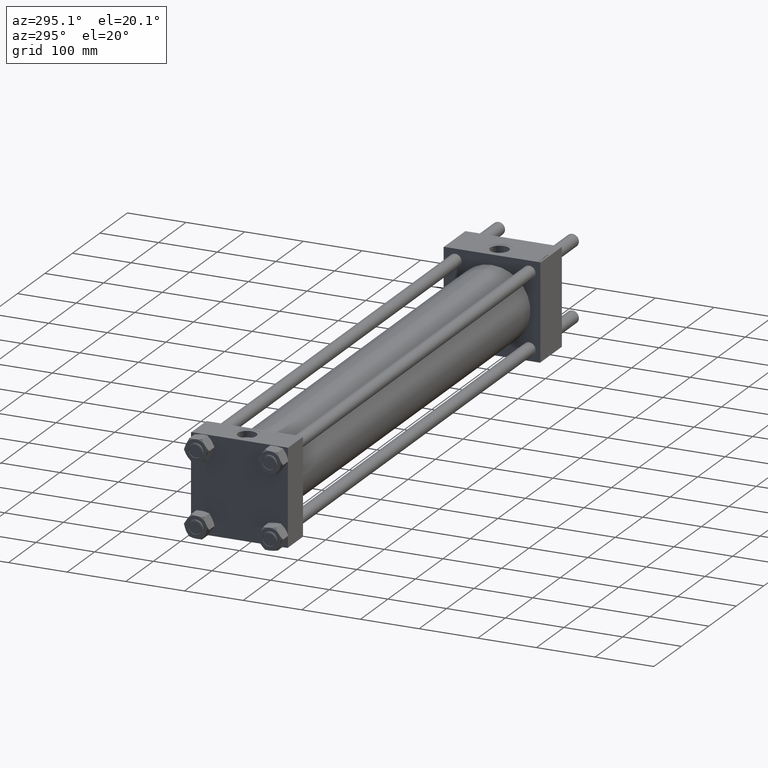
[diagram: clean part render]
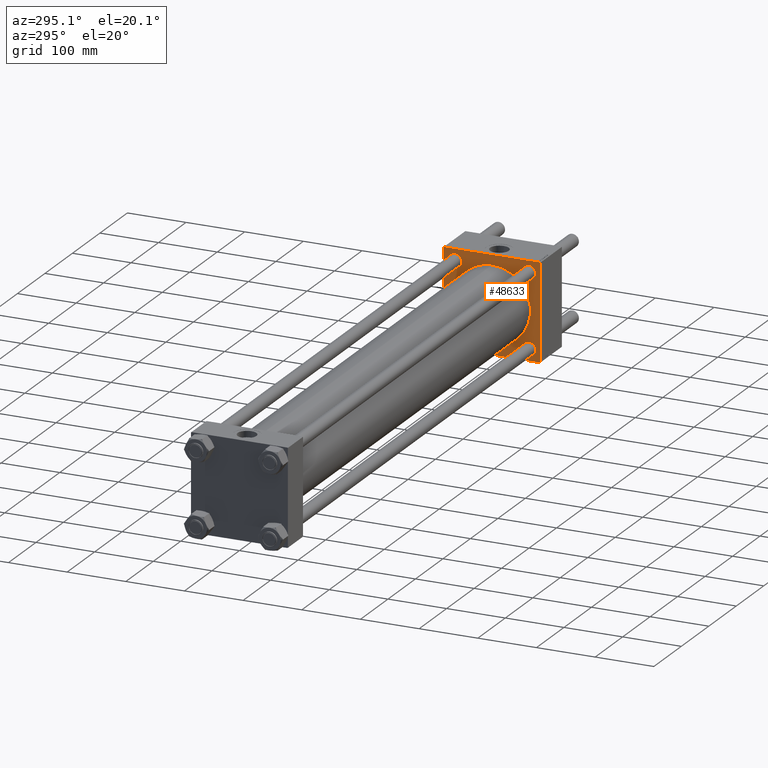
[diagram: same view with one face highlighted and labeled with its STEP entity id]
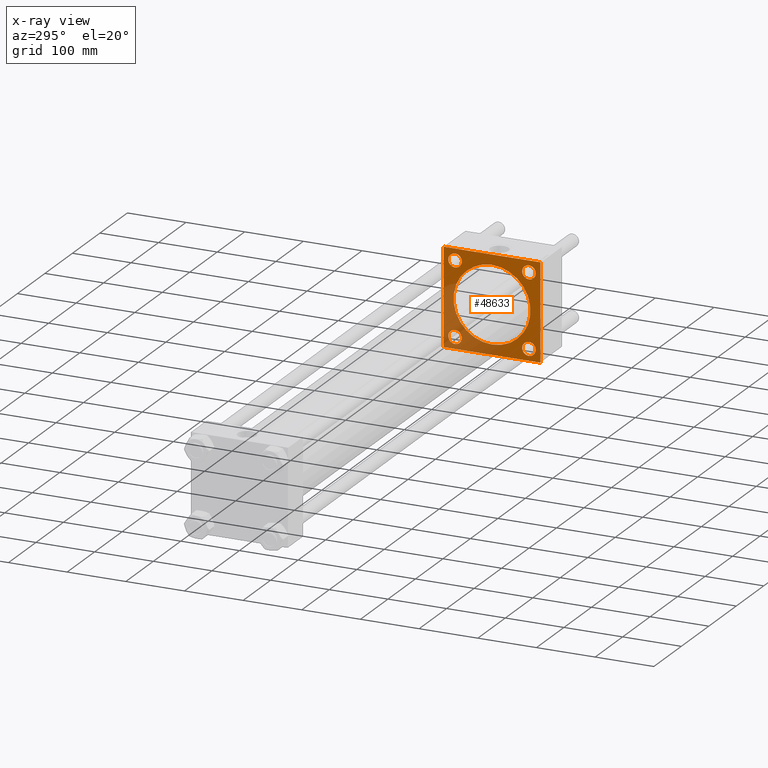
[diagram: x-ray of the same camera — body ghosted, the highlighted face saturated]
A machine part, auxiliary view. The second image highlights one B-rep face of the part: STEP entity #48633.
The next image is the same camera in x-ray: the body ghosted, the highlighted face saturated — about 30% of this face is hidden behind the body in this view.
In plain terms, the highlighted planar face has unit normal (-1, 0, 0).
Its self-contained STEP definition (entity closure, byte-faithful):
#79 = DIRECTION ( 'NONE',  ( 0.000000000000000000, 0.000000000000000000, -1.000000000000000000 ) ) ;
#223 = DIRECTION ( 'NONE',  ( 0.000000000000000000, 0.000000000000000000, 1.000000000000000000 ) ) ;
#1224 = VERTEX_POINT ( 'NONE', #49456 ) ;
#1957 = ORIENTED_EDGE ( 'NONE', *, *, #35893, .T. ) ;
#2743 = VERTEX_POINT ( 'NONE', #3774 ) ;
#3432 = DIRECTION ( 'NONE',  ( 0.000000000000000000, 0.000000000000000000, 1.000000000000000000 ) ) ;
#3610 = FACE_BOUND ( 'NONE', #14851, .T. ) ;
#3683 = DIRECTION ( 'NONE',  ( 1.000000000000000000, 0.000000000000000000, -0.000000000000000000 ) ) ;
#3702 = CARTESIAN_POINT ( 'NONE',  ( 919.0000000000000000, -2.602085213965210642E-15, 0.000000000000000000 ) ) ;
#3774 = CARTESIAN_POINT ( 'NONE',  ( 919.0000000000000000, 62.95000000000000284, 51.45000000000027285 ) ) ;
#3797 = ORIENTED_EDGE ( 'NONE', *, *, #41716, .F. ) ;
#4388 = DIRECTION ( 'NONE',  ( -0.000000000000000000, 0.7071067811865573427, 0.7071067811865376918 ) ) ;
#4572 = CARTESIAN_POINT ( 'NONE',  ( 919.0000000000000000, 62.95000000000000284, 62.95000000000000284 ) ) ;
#5892 = EDGE_CURVE ( 'NONE', #27358, #20453, #47276, .T. ) ;
#6140 = EDGE_LOOP ( 'NONE', ( #43235, #16230, #3797, #55112, #32992, #44454, #45567, #14148 ) ) ;
#7070 = AXIS2_PLACEMENT_3D ( 'NONE', #47682, #3683, #33236 ) ;
#7568 = VERTEX_POINT ( 'NONE', #15457 ) ;
#7668 = CARTESIAN_POINT ( 'NONE',  ( 919.0000000000000000, -62.94999999999998153, -74.44999999999974705 ) ) ;
#7822 = CIRCLE ( 'NONE', #30027, 11.49999999999973355 ) ;
#7831 = VERTEX_POINT ( 'NONE', #17268 ) ;
#7835 = LINE ( 'NONE', #42305, #56791 ) ;
#7858 = ORIENTED_EDGE ( 'NONE', *, *, #49050, .T. ) ;
#7923 = ORIENTED_EDGE ( 'NONE', *, *, #33214, .T. ) ;
#7957 = CARTESIAN_POINT ( 'NONE',  ( 919.0000000000000000, -82.49999999999997158, 81.99999999999991473 ) ) ;
#8914 = EDGE_CURVE ( 'NONE', #41818, #1224, #31174, .T. ) ;
#9157 = CARTESIAN_POINT ( 'NONE',  ( 919.0000000000000000, 62.95000000000000284, -62.95000000000000284 ) ) ;
#9288 = LINE ( 'NONE', #35099, #32278 ) ;
#9549 = EDGE_CURVE ( 'NONE', #43296, #7831, #40416, .T. ) ;
#10009 = CARTESIAN_POINT ( 'NONE',  ( 919.0000000000000000, 82.50000000000001421, -82.50000000000002842 ) ) ;
#10528 = EDGE_CURVE ( 'NONE', #47520, #31435, #30566, .T. ) ;
#11296 = CARTESIAN_POINT ( 'NONE',  ( 919.0000000000000000, -62.94999999999998153, -62.95000000000001705 ) ) ;
#11417 = DIRECTION ( 'NONE',  ( 0.000000000000000000, 0.000000000000000000, -1.000000000000000000 ) ) ;
#12033 = EDGE_CURVE ( 'NONE', #47520, #27358, #41742, .T. ) ;
#12051 = AXIS2_PLACEMENT_3D ( 'NONE', #3702, #21354, #25993 ) ;
#12154 = DIRECTION ( 'NONE',  ( 1.000000000000000000, 0.000000000000000000, -0.000000000000000000 ) ) ;
#12874 = CIRCLE ( 'NONE', #34120, 11.49999999999973355 ) ;
#13154 = FACE_BOUND ( 'NONE', #19868, .T. ) ;
#13473 = VECTOR ( 'NONE', #79, 1000.000000000000000 ) ;
#14148 = ORIENTED_EDGE ( 'NONE', *, *, #16415, .T. ) ;
#14407 = VECTOR ( 'NONE', #39537, 1000.000000000000000 ) ;
#14625 = DIRECTION ( 'NONE',  ( -0.000000000000000000, -0.7071067811865474617, -0.7071067811865474617 ) ) ;
#14851 = EDGE_LOOP ( 'NONE', ( #1957, #49174 ) ) ;
#14910 = LINE ( 'NONE', #53712, #33064 ) ;
#15122 = EDGE_CURVE ( 'NONE', #7568, #47366, #19557, .T. ) ;
#15231 = VERTEX_POINT ( 'NONE', #7957 ) ;
#15457 = CARTESIAN_POINT ( 'NONE',  ( 919.0000000000000000, 81.99999999999995737, -82.50000000000002842 ) ) ;
#15974 = CARTESIAN_POINT ( 'NONE',  ( 919.0000000000000000, 81.99999999999995737, 82.50000000000000000 ) ) ;
#16230 = ORIENTED_EDGE ( 'NONE', *, *, #29250, .T. ) ;
#16415 = EDGE_CURVE ( 'NONE', #20453, #7568, #14910, .T. ) ;
#16638 = CARTESIAN_POINT ( 'NONE',  ( 919.0000000000000000, 0.000000000000000000, 0.000000000000000000 ) ) ;
#17245 = DIRECTION ( 'NONE',  ( 0.000000000000000000, 0.000000000000000000, 1.000000000000000000 ) ) ;
#17268 = CARTESIAN_POINT ( 'NONE',  ( 919.0000000000000000, -62.94999999999998153, 74.44999999999997442 ) ) ;
#17532 = DIRECTION ( 'NONE',  ( 1.000000000000000000, 0.000000000000000000, -0.000000000000000000 ) ) ;
#17766 = ORIENTED_EDGE ( 'NONE', *, *, #8914, .T. ) ;
#18190 = CIRCLE ( 'NONE', #7070, 11.49999999999973355 ) ;
#19328 = CARTESIAN_POINT ( 'NONE',  ( 919.0000000000000000, -62.94999999999998153, 62.95000000000001705 ) ) ;
#19557 = LINE ( 'NONE', #10009, #45024 ) ;
#19607 = DIRECTION ( 'NONE',  ( 0.000000000000000000, 0.000000000000000000, 1.000000000000000000 ) ) ;
#19868 = EDGE_LOOP ( 'NONE', ( #50346, #28737 ) ) ;
#20007 = DIRECTION ( 'NONE',  ( 0.000000000000000000, -1.682156097916903834E-16, -1.000000000000000000 ) ) ;
#20358 = VECTOR ( 'NONE', #35349, 1000.000000000000000 ) ;
#20453 = VERTEX_POINT ( 'NONE', #56142 ) ;
#21138 = EDGE_CURVE ( 'NONE', #15231, #31435, #9288, .T. ) ;
#21354 = DIRECTION ( 'NONE',  ( 1.000000000000000000, 0.000000000000000000, 0.000000000000000000 ) ) ;
#22164 = VERTEX_POINT ( 'NONE', #50107 ) ;
#22750 = DIRECTION ( 'NONE',  ( 1.000000000000000000, 0.000000000000000000, -0.000000000000000000 ) ) ;
#22765 = VECTOR ( 'NONE', #28711, 1000.000000000000114 ) ;
#22855 = CIRCLE ( 'NONE', #49630, 65.50000000000001421 ) ;
#23325 = CARTESIAN_POINT ( 'NONE',  ( 919.0000000000000000, 82.50000000000001421, 81.99999999999994316 ) ) ;
#24657 = ORIENTED_EDGE ( 'NONE', *, *, #56060, .T. ) ;
#25901 = FACE_BOUND ( 'NONE', #54332, .T. ) ;
#25993 = DIRECTION ( 'NONE',  ( 0.000000000000000000, 0.000000000000000000, -1.000000000000000000 ) ) ;
#26540 = CARTESIAN_POINT ( 'NONE',  ( 919.0000000000000000, -62.94999999999998153, -51.45000000000028706 ) ) ;
#27302 = EDGE_LOOP ( 'NONE', ( #31370, #56838 ) ) ;
#27358 = VERTEX_POINT ( 'NONE', #23325 ) ;
#28292 = EDGE_LOOP ( 'NONE', ( #17766, #7923 ) ) ;
#28338 = EDGE_CURVE ( 'NONE', #56220, #22164, #42552, .T. ) ;
#28369 = AXIS2_PLACEMENT_3D ( 'NONE', #16638, #51959, #48468 ) ;
#28711 = DIRECTION ( 'NONE',  ( 0.000000000000000000, 0.7071067811865474617, -0.7071067811865474617 ) ) ;
#28737 = ORIENTED_EDGE ( 'NONE', *, *, #38136, .T. ) ;
#29250 = EDGE_CURVE ( 'NONE', #47366, #53707, #56754, .T. ) ;
#29271 = CARTESIAN_POINT ( 'NONE',  ( 919.0000000000000000, -81.99999999999990052, 82.49999999999997158 ) ) ;
#30027 = AXIS2_PLACEMENT_3D ( 'NONE', #11296, #12154, #34455 ) ;
#30281 = CARTESIAN_POINT ( 'NONE',  ( 919.0000000000000000, -62.94999999999998153, -62.95000000000001705 ) ) ;
#30566 = LINE ( 'NONE', #52845, #14407 ) ;
#30720 = CARTESIAN_POINT ( 'NONE',  ( 919.0000000000000000, -82.25000000000805755, -82.24999999999208455 ) ) ;
#30822 = PLANE ( 'NONE',  #28369 ) ;
#31174 = CIRCLE ( 'NONE', #33035, 11.49999999999973355 ) ;
#31370 = ORIENTED_EDGE ( 'NONE', *, *, #50412, .T. ) ;
#31435 = VERTEX_POINT ( 'NONE', #29271 ) ;
#32278 = VECTOR ( 'NONE', #4388, 1000.000000000000114 ) ;
#32424 = CARTESIAN_POINT ( 'NONE',  ( 919.0000000000000000, 62.95000000000000284, -51.45000000000027285 ) ) ;
#32798 = EDGE_CURVE ( 'NONE', #54545, #34756, #36338, .T. ) ;
#32992 = ORIENTED_EDGE ( 'NONE', *, *, #10528, .F. ) ;
#33035 = AXIS2_PLACEMENT_3D ( 'NONE', #9157, #22750, #53445 ) ;
#33064 = VECTOR ( 'NONE', #14625, 1000.000000000000114 ) ;
#33214 = EDGE_CURVE ( 'NONE', #1224, #41818, #49268, .T. ) ;
#33236 = DIRECTION ( 'NONE',  ( 0.000000000000000000, 0.000000000000000000, 1.000000000000000000 ) ) ;
#34120 = AXIS2_PLACEMENT_3D ( 'NONE', #4572, #39896, #223 ) ;
#34182 = DIRECTION ( 'NONE',  ( 1.000000000000000000, 0.000000000000000000, -0.000000000000000000 ) ) ;
#34217 = CARTESIAN_POINT ( 'NONE',  ( 919.0000000000000000, 62.95000000000000284, 74.44999999999973284 ) ) ;
#34455 = DIRECTION ( 'NONE',  ( 0.000000000000000000, 0.000000000000000000, 1.000000000000000000 ) ) ;
#34756 = VERTEX_POINT ( 'NONE', #7668 ) ;
#35099 = CARTESIAN_POINT ( 'NONE',  ( 919.0000000000000000, -82.24999999999880629, 82.25000000000108002 ) ) ;
#35349 = DIRECTION ( 'NONE',  ( 0.000000000000000000, -0.7071067811864788499, 0.7071067811866161845 ) ) ;
#35893 = EDGE_CURVE ( 'NONE', #7831, #43296, #37326, .T. ) ;
#36338 = CIRCLE ( 'NONE', #41874, 11.49999999999973355 ) ;
#37326 = CIRCLE ( 'NONE', #56750, 11.49999999999995381 ) ;
#38136 = EDGE_CURVE ( 'NONE', #34756, #54545, #7822, .T. ) ;
#38519 = DIRECTION ( 'NONE',  ( 0.000000000000000000, 0.000000000000000000, 1.000000000000000000 ) ) ;
#39280 = CARTESIAN_POINT ( 'NONE',  ( 919.0000000000000000, -82.50000000000000000, -82.00000000000008527 ) ) ;
#39537 = DIRECTION ( 'NONE',  ( 0.000000000000000000, -1.000000000000000000, -1.682156097916904081E-16 ) ) ;
#39896 = DIRECTION ( 'NONE',  ( 1.000000000000000000, 0.000000000000000000, -0.000000000000000000 ) ) ;
#40416 = CIRCLE ( 'NONE', #46853, 11.49999999999995381 ) ;
#41716 = EDGE_CURVE ( 'NONE', #15231, #53707, #7835, .T. ) ;
#41742 = LINE ( 'NONE', #46350, #22765 ) ;
#41818 = VERTEX_POINT ( 'NONE', #32424 ) ;
#41874 = AXIS2_PLACEMENT_3D ( 'NONE', #30281, #17532, #17245 ) ;
#42305 = CARTESIAN_POINT ( 'NONE',  ( 919.0000000000000000, -82.49999999999997158, 82.49999999999997158 ) ) ;
#42552 = CIRCLE ( 'NONE', #12051, 65.50000000000001421 ) ;
#43235 = ORIENTED_EDGE ( 'NONE', *, *, #15122, .T. ) ;
#43259 = CARTESIAN_POINT ( 'NONE',  ( 919.0000000000000000, -2.602085213965210642E-15, 0.000000000000000000 ) ) ;
#43292 = CARTESIAN_POINT ( 'NONE',  ( 919.0000000000000000, 5.419351320449954973E-15, -65.50000000000001421 ) ) ;
#43296 = VERTEX_POINT ( 'NONE', #47371 ) ;
#43548 = FACE_BOUND ( 'NONE', #27302, .T. ) ;
#44454 = ORIENTED_EDGE ( 'NONE', *, *, #12033, .T. ) ;
#45024 = VECTOR ( 'NONE', #55154, 1000.000000000000000 ) ;
#45567 = ORIENTED_EDGE ( 'NONE', *, *, #5892, .T. ) ;
#46350 = CARTESIAN_POINT ( 'NONE',  ( 919.0000000000000000, 82.24999999999997158, 82.24999999999997158 ) ) ;
#46366 = VERTEX_POINT ( 'NONE', #34217 ) ;
#46853 = AXIS2_PLACEMENT_3D ( 'NONE', #47766, #34182, #38519 ) ;
#47276 = LINE ( 'NONE', #47560, #13473 ) ;
#47366 = VERTEX_POINT ( 'NONE', #48739 ) ;
#47371 = CARTESIAN_POINT ( 'NONE',  ( 919.0000000000000000, -62.94999999999998153, 51.45000000000006679 ) ) ;
#47520 = VERTEX_POINT ( 'NONE', #15974 ) ;
#47560 = CARTESIAN_POINT ( 'NONE',  ( 919.0000000000000000, 82.50000000000001421, 82.50000000000000000 ) ) ;
#47682 = CARTESIAN_POINT ( 'NONE',  ( 919.0000000000000000, 62.95000000000000284, 62.95000000000000284 ) ) ;
#47766 = CARTESIAN_POINT ( 'NONE',  ( 919.0000000000000000, -62.94999999999998153, 62.95000000000001705 ) ) ;
#48468 = DIRECTION ( 'NONE',  ( 0.000000000000000000, 0.000000000000000000, 1.000000000000000000 ) ) ;
#48633 = ADVANCED_FACE ( 'NONE', ( #3610, #25901, #56289, #13154, #43548, #52532 ), #30822, .T. ) ;
#48739 = CARTESIAN_POINT ( 'NONE',  ( 919.0000000000000000, -82.00000000000015632, -82.50000000000002842 ) ) ;
#49050 = EDGE_CURVE ( 'NONE', #46366, #2743, #18190, .T. ) ;
#49174 = ORIENTED_EDGE ( 'NONE', *, *, #9549, .T. ) ;
#49268 = CIRCLE ( 'NONE', #53895, 11.49999999999973355 ) ;
#49456 = CARTESIAN_POINT ( 'NONE',  ( 919.0000000000000000, 62.95000000000000284, -74.44999999999973284 ) ) ;
#49630 = AXIS2_PLACEMENT_3D ( 'NONE', #43259, #51958, #11417 ) ;
#50107 = CARTESIAN_POINT ( 'NONE',  ( 919.0000000000000000, -2.602085213965210642E-15, 65.50000000000001421 ) ) ;
#50346 = ORIENTED_EDGE ( 'NONE', *, *, #32798, .T. ) ;
#50412 = EDGE_CURVE ( 'NONE', #22164, #56220, #22855, .T. ) ;
#50881 = DIRECTION ( 'NONE',  ( 1.000000000000000000, 0.000000000000000000, -0.000000000000000000 ) ) ;
#50924 = CARTESIAN_POINT ( 'NONE',  ( 919.0000000000000000, 62.95000000000000284, -62.95000000000000284 ) ) ;
#51958 = DIRECTION ( 'NONE',  ( 1.000000000000000000, 0.000000000000000000, 0.000000000000000000 ) ) ;
#51959 = DIRECTION ( 'NONE',  ( -1.000000000000000000, -0.000000000000000000, 0.000000000000000000 ) ) ;
#52532 = FACE_OUTER_BOUND ( 'NONE', #6140, .T. ) ;
#52845 = CARTESIAN_POINT ( 'NONE',  ( 919.0000000000000000, 82.50000000000001421, 82.50000000000000000 ) ) ;
#53445 = DIRECTION ( 'NONE',  ( 0.000000000000000000, 0.000000000000000000, 1.000000000000000000 ) ) ;
#53707 = VERTEX_POINT ( 'NONE', #39280 ) ;
#53712 = CARTESIAN_POINT ( 'NONE',  ( 919.0000000000000000, 82.24999999999998579, -82.24999999999998579 ) ) ;
#53895 = AXIS2_PLACEMENT_3D ( 'NONE', #50924, #54962, #3432 ) ;
#54332 = EDGE_LOOP ( 'NONE', ( #7858, #24657 ) ) ;
#54545 = VERTEX_POINT ( 'NONE', #26540 ) ;
#54962 = DIRECTION ( 'NONE',  ( 1.000000000000000000, 0.000000000000000000, -0.000000000000000000 ) ) ;
#55112 = ORIENTED_EDGE ( 'NONE', *, *, #21138, .T. ) ;
#55154 = DIRECTION ( 'NONE',  ( 0.000000000000000000, -1.000000000000000000, 0.000000000000000000 ) ) ;
#56060 = EDGE_CURVE ( 'NONE', #2743, #46366, #12874, .T. ) ;
#56142 = CARTESIAN_POINT ( 'NONE',  ( 919.0000000000000000, 82.50000000000001421, -81.99999999999997158 ) ) ;
#56220 = VERTEX_POINT ( 'NONE', #43292 ) ;
#56289 = FACE_BOUND ( 'NONE', #28292, .T. ) ;
#56750 = AXIS2_PLACEMENT_3D ( 'NONE', #19328, #50881, #19607 ) ;
#56754 = LINE ( 'NONE', #30720, #20358 ) ;
#56791 = VECTOR ( 'NONE', #20007, 1000.000000000000000 ) ;
#56838 = ORIENTED_EDGE ( 'NONE', *, *, #28338, .T. ) ;